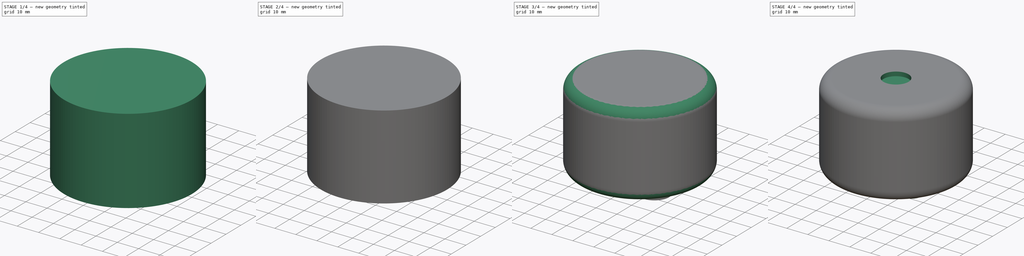
[diagram: build sequence overview — one tinted view per stage of 4, left to right]
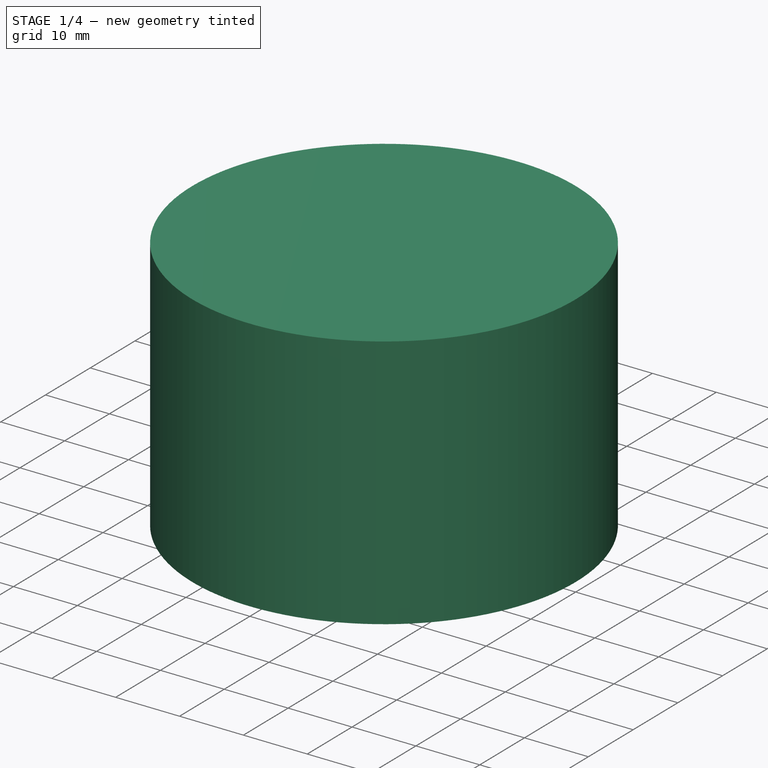
[diagram: stage 1 of 4 — iso view after this stage's code; geometry added in this stage tinted green]
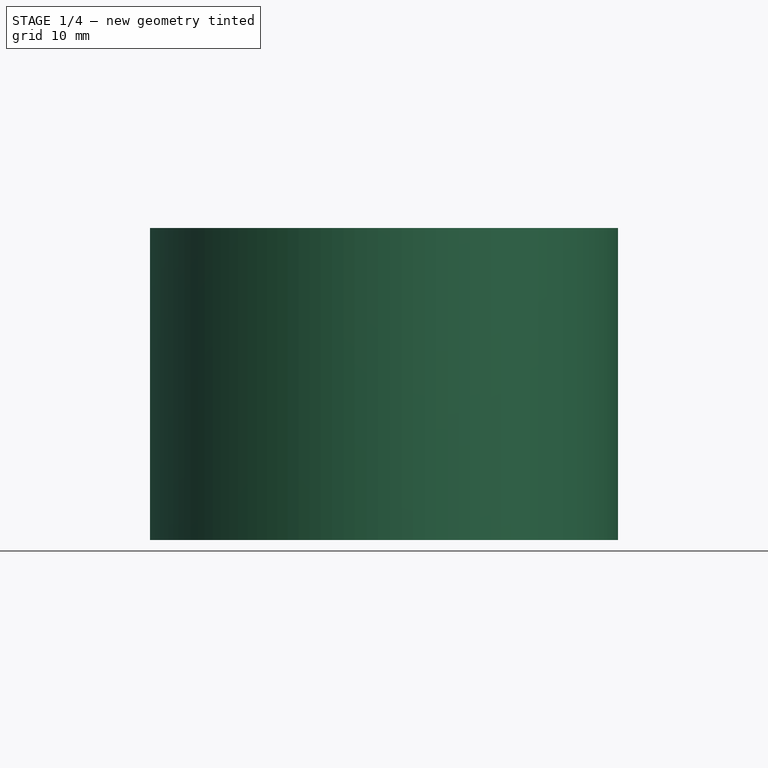
[diagram: stage 1 of 4 — front view after this stage's code; geometry added in this stage tinted green]
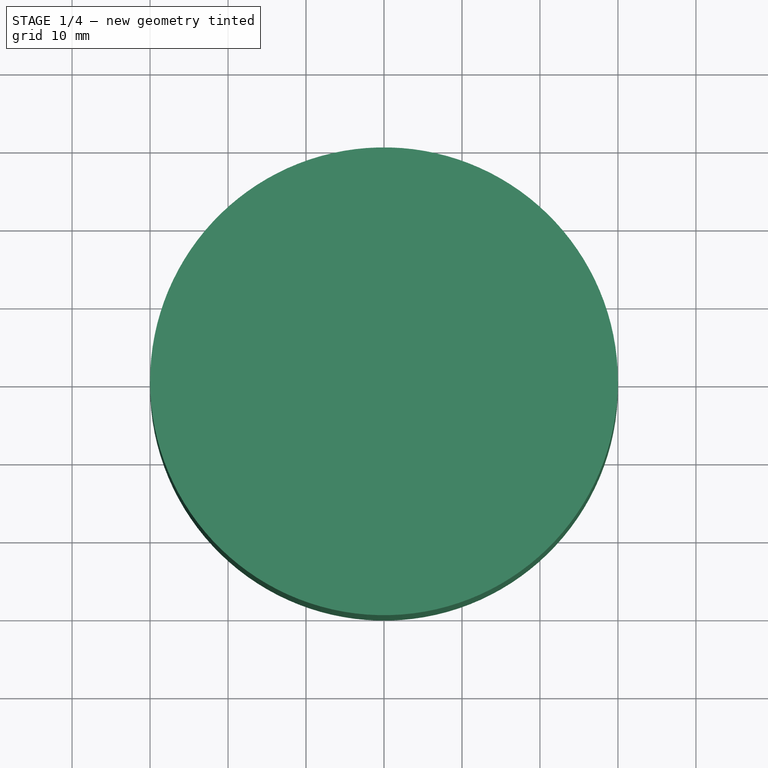
[diagram: stage 1 of 4 — top view after this stage's code; geometry added in this stage tinted green]
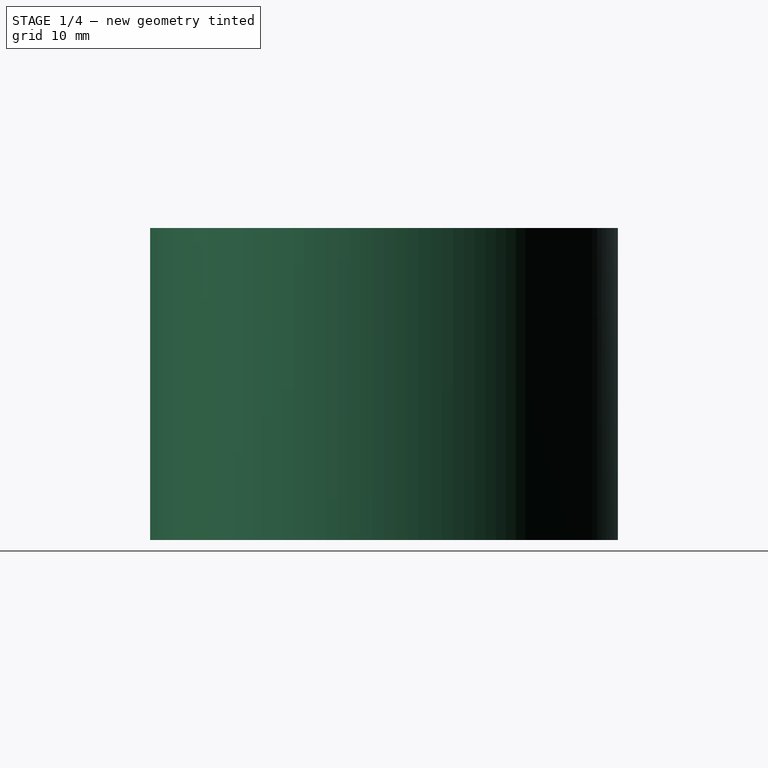
[diagram: stage 1 of 4 — right view after this stage's code; geometry added in this stage tinted green]
FCSTD DOCUMENT  (FreeCAD 0.14R3691 (Git))
Label: BaseModel-1
License: CC-BY 3.0
LicenseURL: http://creativecommons.org/licenses/by/3.0/
objects: Sketcher::SketchObject×6, Part::Extrusion×4, Part::Cut×2, Part::Fuse×2, PartDesign::Fillet×2, Part::Loft×1, Part::Fillet×1
note: 18 computed .brp shape members not serialized (recipe doc carries the construction recipe); baked Part::Feature solids carry a one-line shape summary decoded from their .brp

FEATURE [Sketcher::SketchObject] Sketch  label="Main Circle"
  sketch-geometry (1):
    g0: Circle CenterX=0 CenterY=0 CenterZ=0 NormalX=0 NormalY=0 NormalZ=1 Radius=30
  constraints (2):
    c: Coincident(g0,g-1)
    c: Radius(g0) = 30
FEATURE [Sketcher::SketchObject] Sketch001  label="Big Button Bumps"
  sketch-geometry (2):
    g0: Circle CenterX=12.5 CenterY=-8 CenterZ=0 NormalX=0 NormalY=0 NormalZ=1 Radius=7
    g1: Circle CenterX=-12.5 CenterY=-8 CenterZ=0 NormalX=0 NormalY=0 NormalZ=1 Radius=7
  constraints (5):
    c: Radius(g1) = 7
    c: Symmetric(g1,g0,g-2)
    c: DistanceX(g-2,g1) = -12.5
    c: DistanceY(g-1,g1) = -8
    c: Equal(g1,g0)
FEATURE [Sketcher::SketchObject] Sketch002  label="Port Cuts"
  sketch-geometry (8):
    g0: LineSegment StartX=-4.4 StartY=-3 StartZ=0 EndX=4.4 EndY=-3 EndZ=0
    g1: LineSegment StartX=4.4 StartY=-3 StartZ=0 EndX=4.4 EndY=-7.4 EndZ=0
    g2: LineSegment StartX=4.4 StartY=-7.4 StartZ=0 EndX=-4.4 EndY=-7.4 EndZ=0
    g3: LineSegment StartX=-4.4 StartY=-7.4 StartZ=0 EndX=-4.4 EndY=-3 EndZ=0
    g4: LineSegment StartX=-4.4 StartY=-10.4 StartZ=0 EndX=4.4 EndY=-10.4 EndZ=0
    g5: LineSegment StartX=4.4 StartY=-10.4 StartZ=0 EndX=4.4 EndY=-14.8 EndZ=0
    g6: LineSegment StartX=4.4 StartY=-14.8 StartZ=0 EndX=-4.4 EndY=-14.8 EndZ=0
    g7: LineSegment StartX=-4.4 StartY=-14.8 StartZ=0 EndX=-4.4 EndY=-10.4 EndZ=0
  constraints (24):
    c: Coincident(g0,g1)
    c: Coincident(g1,g2)
    c: Coincident(g2,g3)
    c: Coincident(g3,g0)
    c: Horizontal(g0)
    c: Horizontal(g2)
    c: Vertical(g1)
    c: Vertical(g3)
    c: DistanceX(g2) = -8.8
    c: DistanceY(g1) = -4.4
    c: Coincident(g4,g5)
    c: Coincident(g5,g6)
    c: Coincident(g6,g7)
    c: Coincident(g7,g4)
    c: Horizontal(g4)
    c: Horizontal(g6)
    c: Vertical(g5)
    c: Vertical(g7)
    c: Equal(g6,g2)
    c: Equal(g1,g5)
    c: Symmetric(g0,g0,g-2)
    c: Symmetric(g4,g4,g-2)
    c: Distance(g1,g4) = 3
    c: DistanceY(g-1,g0) = -3
FEATURE [Sketcher::SketchObject] Sketch003  label="Reset Button Bump"
  sketch-geometry (1):
    g0: Circle CenterX=0 CenterY=-20 CenterZ=0 NormalX=0 NormalY=0 NormalZ=1 Radius=3.75
  constraints (3):
    c: Radius(g0) = 3.75
    c: PointOnObject(g0,g-2)
    c: DistanceY(g-1,g0) = -20
FEATURE [Part::Extrusion] Extrude  label=" Body"
  Base = -> Sketch
  Dir = (0,0,40)
  Solid = true
FEATURE [Part::Extrusion] Extrude002  label="Port Cuts001"
  Base = -> Sketch002
  Dir = (0,0,3)
  Solid = true
FEATURE [Part::Cut] Cut
  Base = -> Extrude
  Tool = -> Extrude002
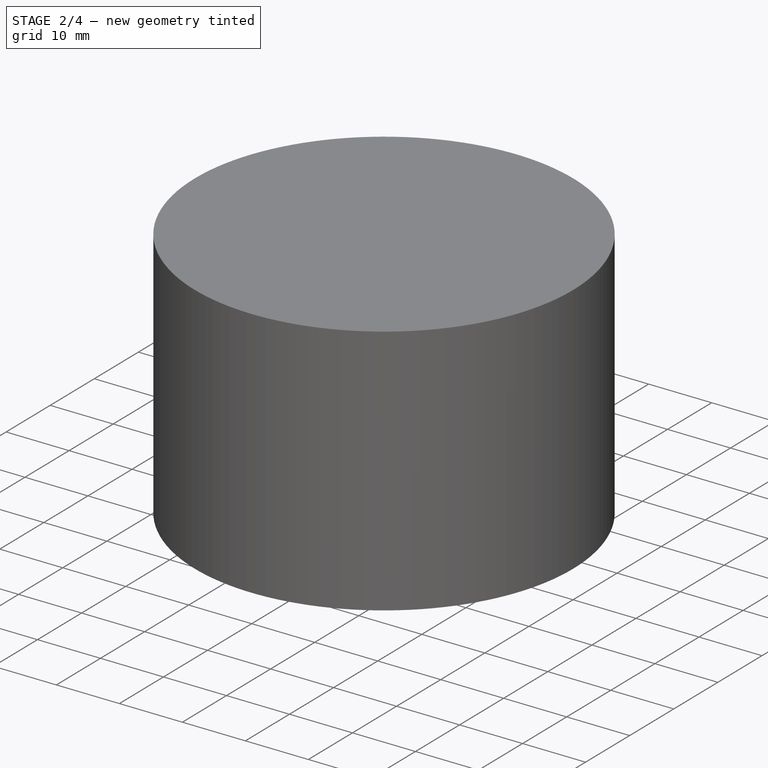
[diagram: stage 2 of 4 — iso view after this stage's code; geometry added in this stage tinted green]
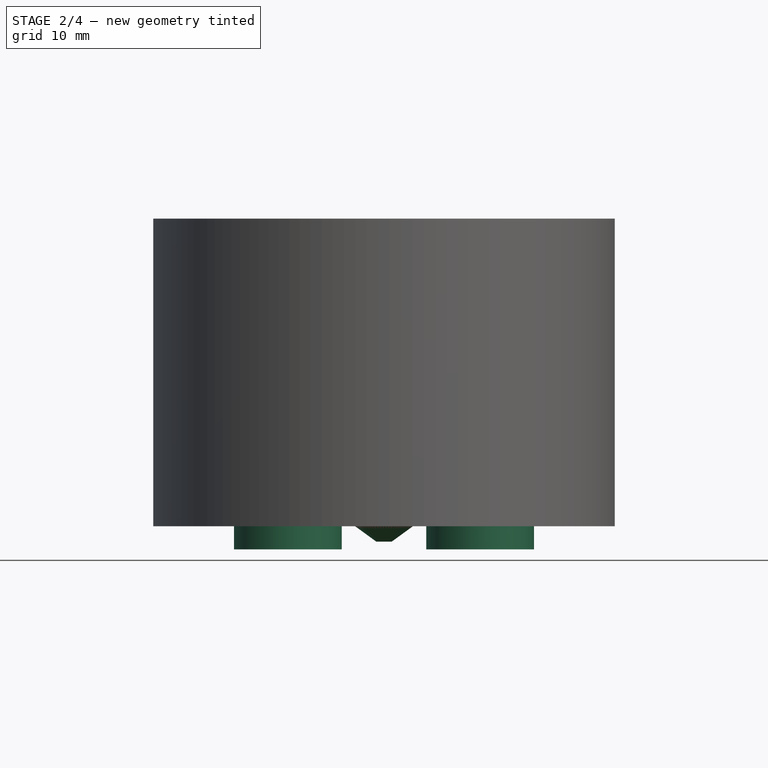
[diagram: stage 2 of 4 — front view after this stage's code; geometry added in this stage tinted green]
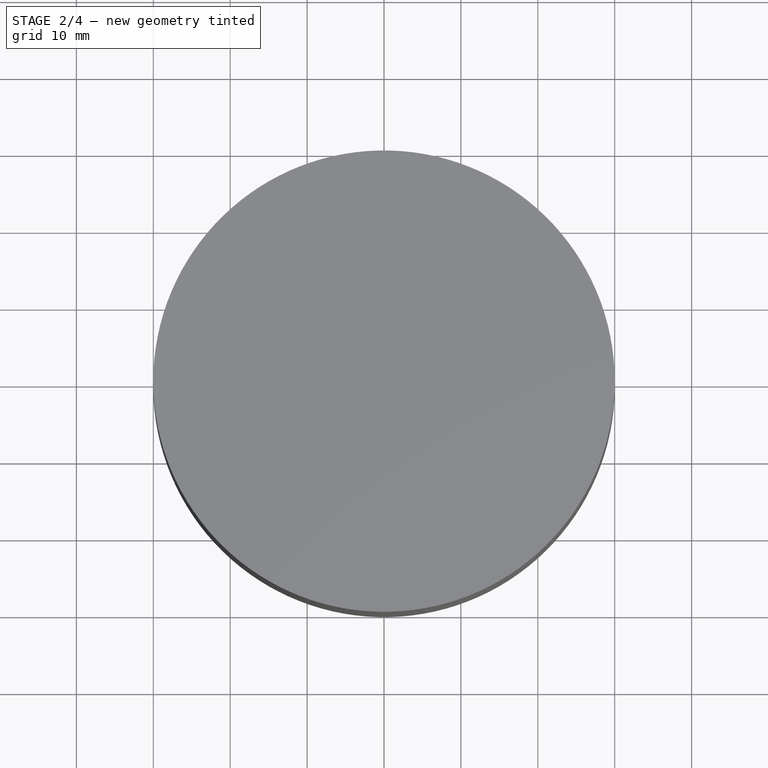
[diagram: stage 2 of 4 — top view after this stage's code; geometry added in this stage tinted green]
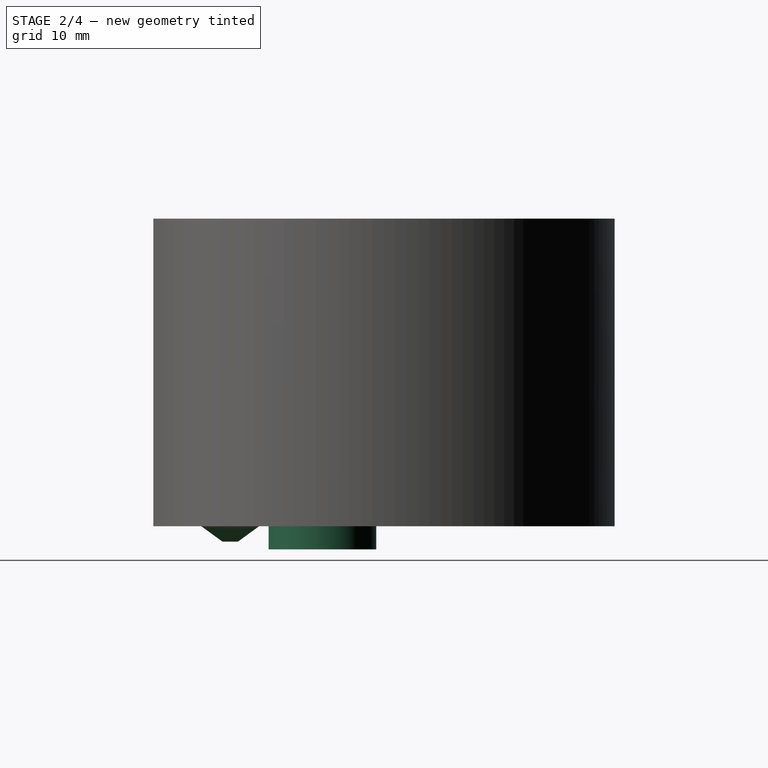
[diagram: stage 2 of 4 — right view after this stage's code; geometry added in this stage tinted green]
FEATURE [Part::Extrusion] Extrude001  label="BigButtons"
  Base = -> Sketch001
  Dir = (0,0,-3)
  Solid = true
FEATURE [Sketcher::SketchObject] Sketch004  label="Reset Button Bump001"
  Placement = pos=(0,0,-2) rot=(0,0,1;0rad)
  sketch-geometry (1):
    g0: Circle CenterX=0 CenterY=-20 CenterZ=0 NormalX=0 NormalY=0 NormalZ=1 Radius=1
  constraints (3):
    c: Radius(g0) = 1
    c: PointOnObject(g0,g-2)
    c: DistanceY(g-1,g0) = -20
FEATURE [Part::Loft] Loft
  Closed = false
  Ruled = false
  Sections = -> [Sketch003,Sketch004]
  Solid = true
FEATURE [Part::Fuse] Fusion
  Base = -> Cut
  Tool = -> Loft
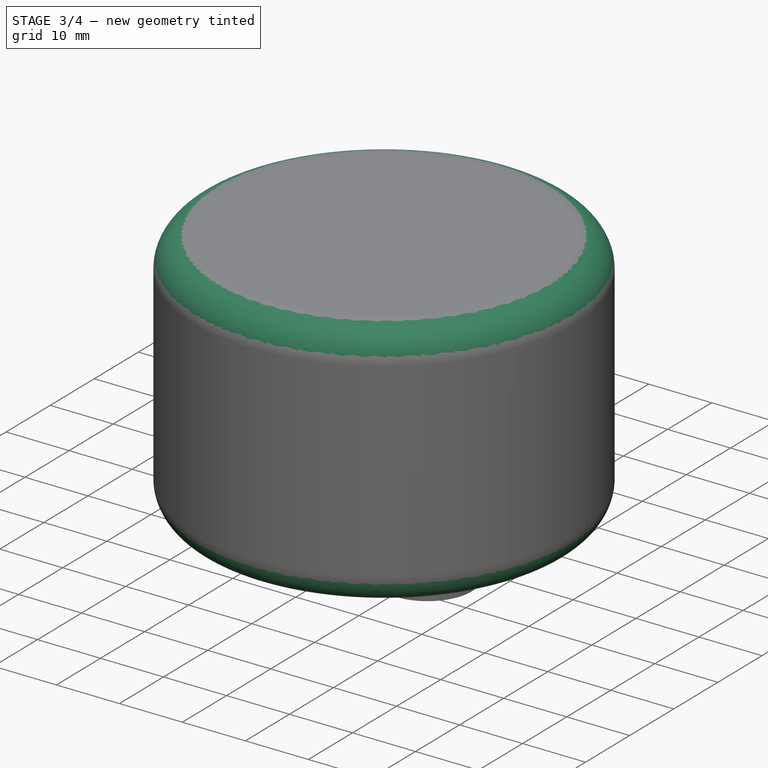
[diagram: stage 3 of 4 — iso view after this stage's code; geometry added in this stage tinted green]
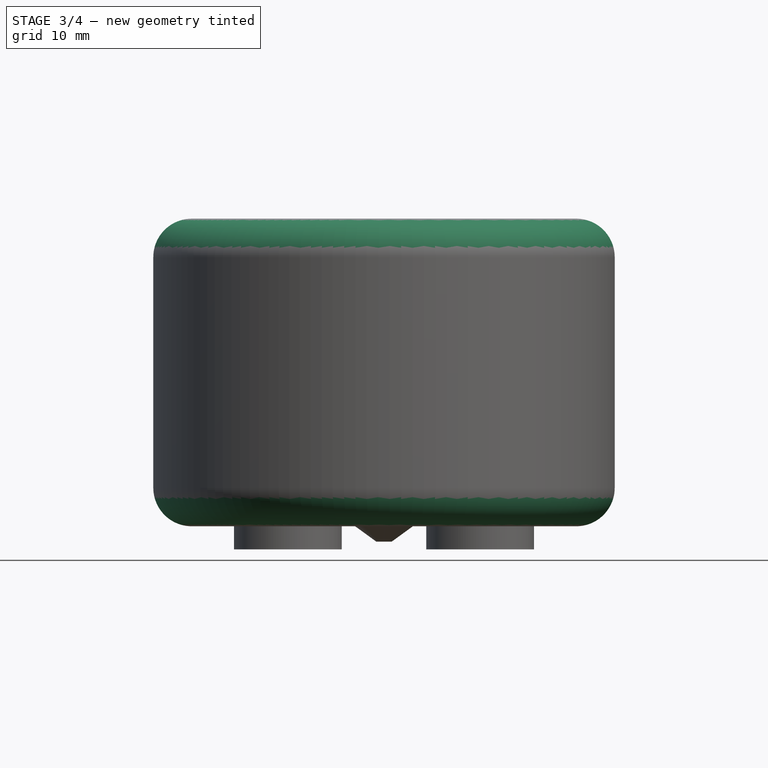
[diagram: stage 3 of 4 — front view after this stage's code; geometry added in this stage tinted green]
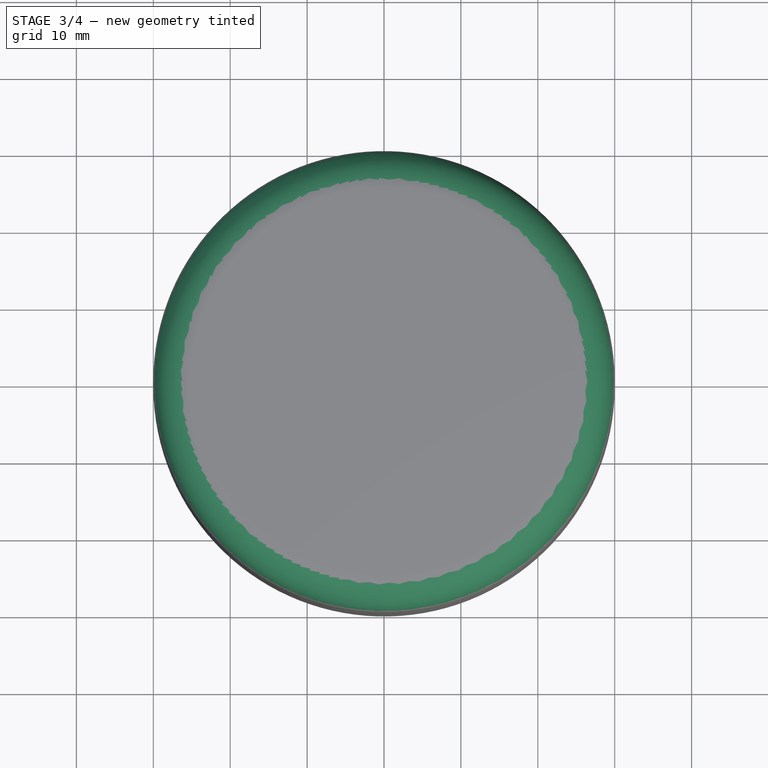
[diagram: stage 3 of 4 — top view after this stage's code; geometry added in this stage tinted green]
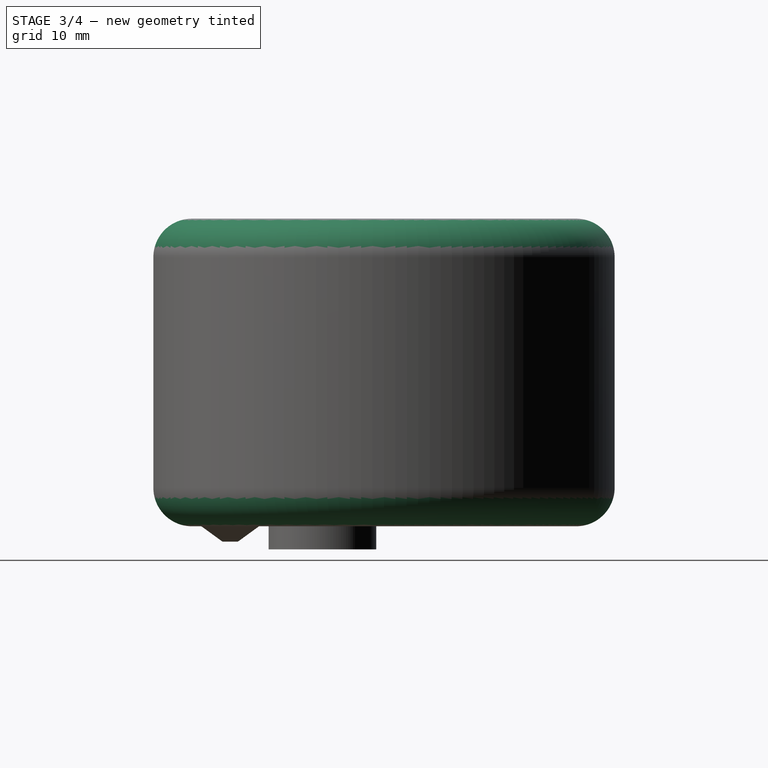
[diagram: stage 3 of 4 — right view after this stage's code; geometry added in this stage tinted green]
FEATURE [Part::Fuse] Fusion001
  Base = -> Fusion
  Tool = -> Extrude001
FEATURE [PartDesign::Fillet] Fillet
  Base = -> Fusion001 [Edge16]
  Radius = 5
FEATURE [PartDesign::Fillet] Fillet001
  Base = -> Fillet [Edge3]
  Radius = 5
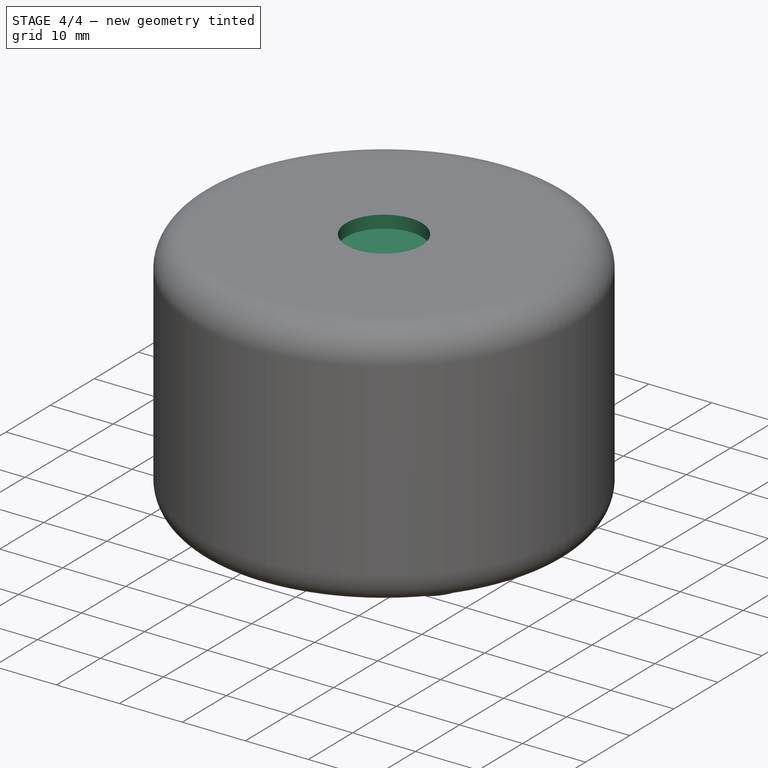
[diagram: stage 4 of 4 — iso view after this stage's code; geometry added in this stage tinted green]
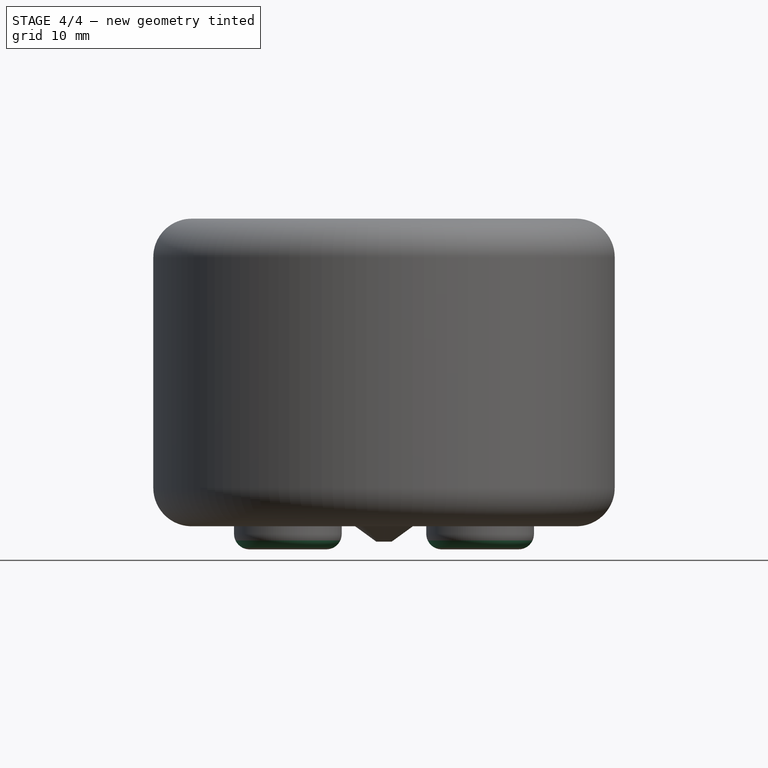
[diagram: stage 4 of 4 — front view after this stage's code; geometry added in this stage tinted green]
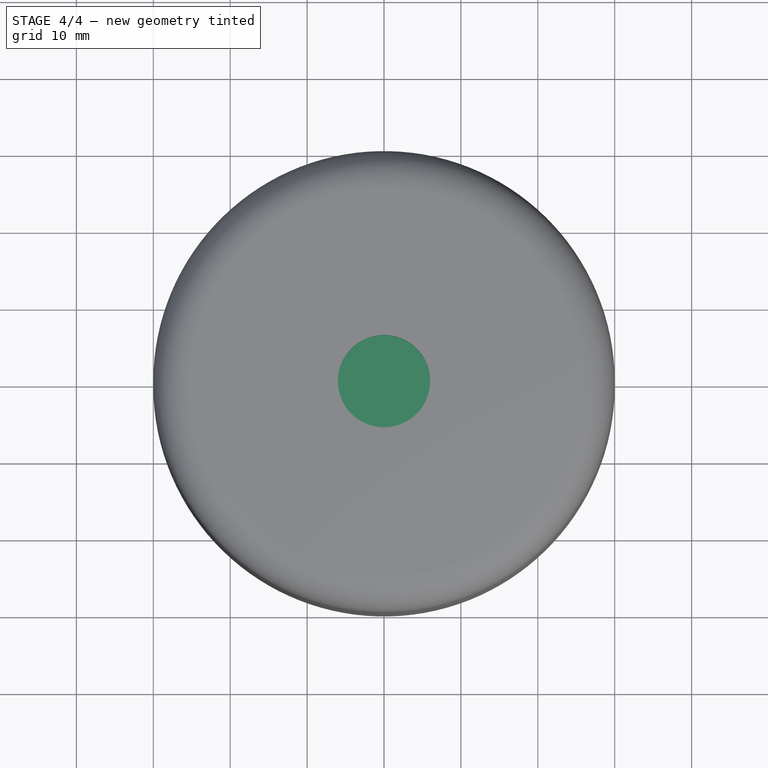
[diagram: stage 4 of 4 — top view after this stage's code; geometry added in this stage tinted green]
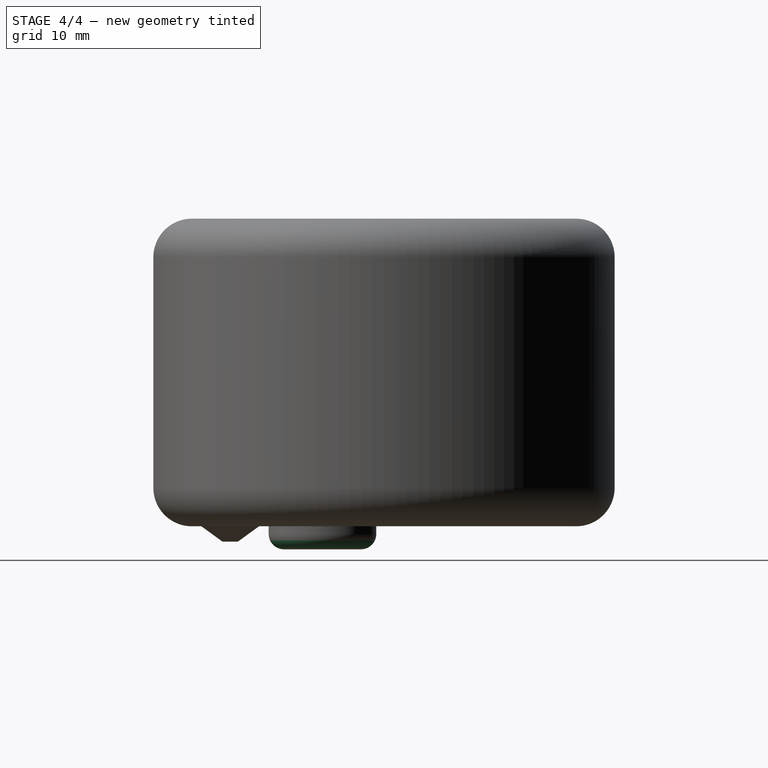
[diagram: stage 4 of 4 — right view after this stage's code; geometry added in this stage tinted green]
FEATURE [Part::Fillet] Fillet002
  Base = -> Fillet001
  Edges = 2 edges r=2: [Edge38,Edge40]
FEATURE [Sketcher::SketchObject] Sketch005
  Placement = pos=(0,0,40) rot=(0,0,1;0rad)
  Support = -> Fillet002 [Face23]
  sketch-geometry (1):
    g0: Circle CenterX=0 CenterY=0 CenterZ=0 NormalX=0 NormalY=0 NormalZ=1 Radius=6
  constraints (2):
    c: Coincident(g0,g-1)
    c: Radius(g0) = 6
FEATURE [Part::Extrusion] Extrude003
  Base = -> Sketch005
  Dir = (0,0,-2)
  Solid = true
FEATURE [Part::Cut] Cut001
  Base = -> Fillet002
  Tool = -> Extrude003
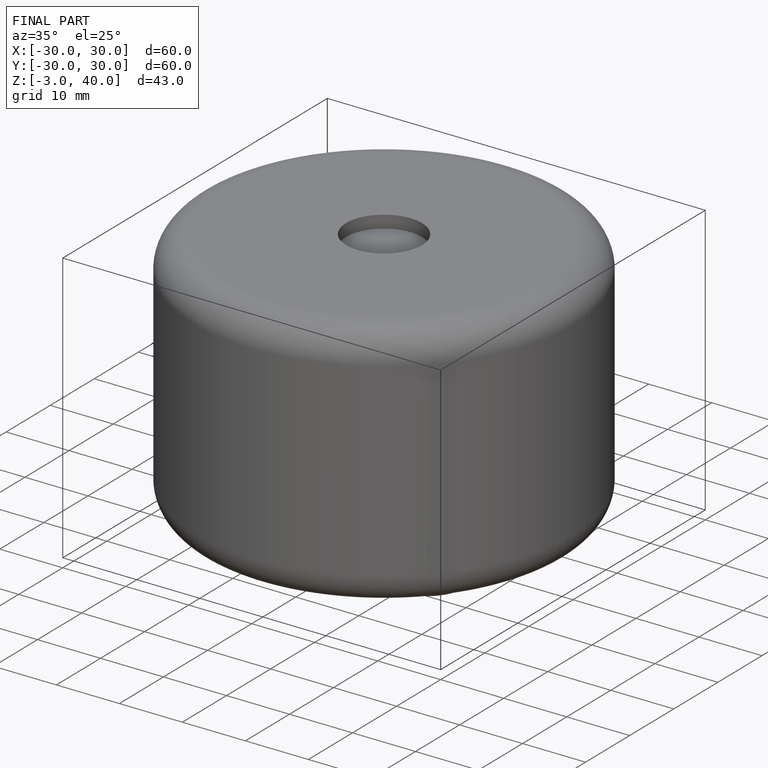
[diagram: finished part — iso view with bounding-box wireframe]
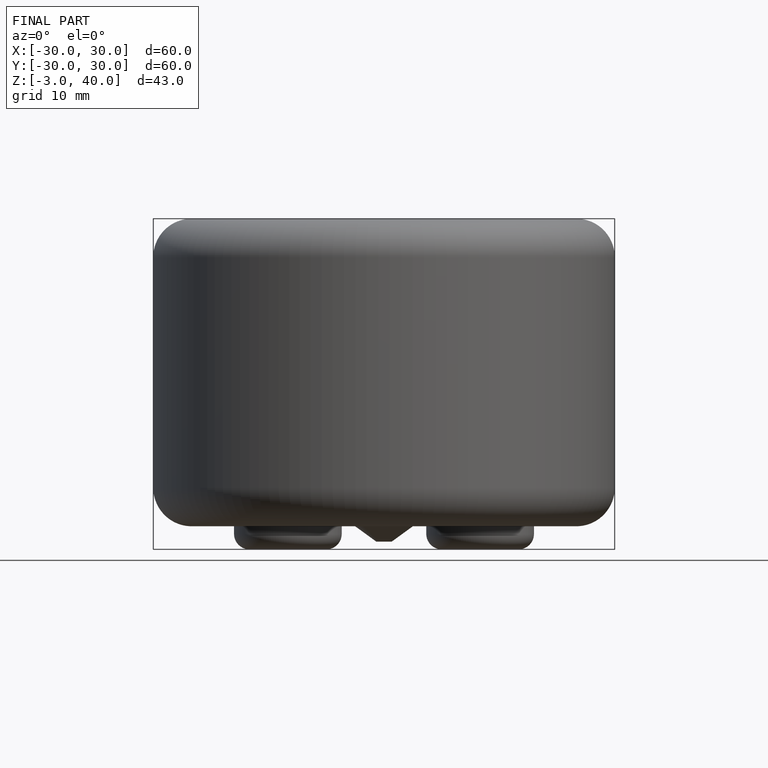
[diagram: finished part — front view with bounding-box wireframe]
